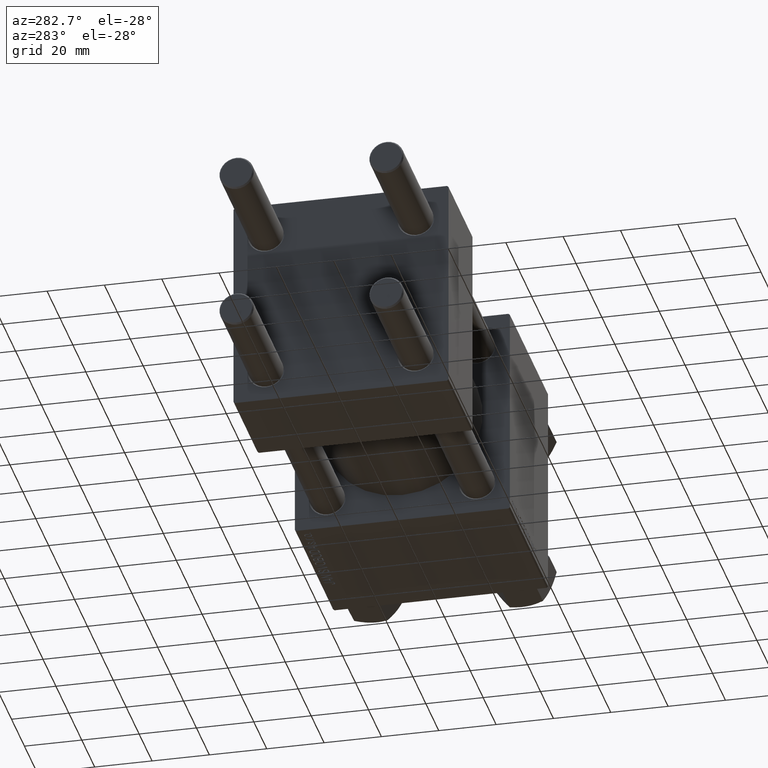
[diagram: clean part render]
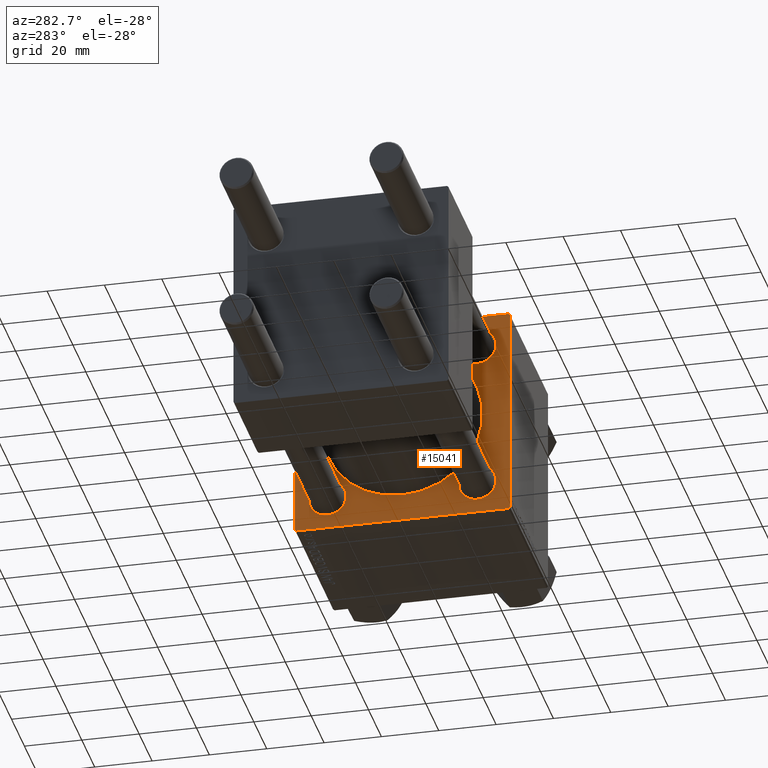
[diagram: same view with one face highlighted and labeled with its STEP entity id]
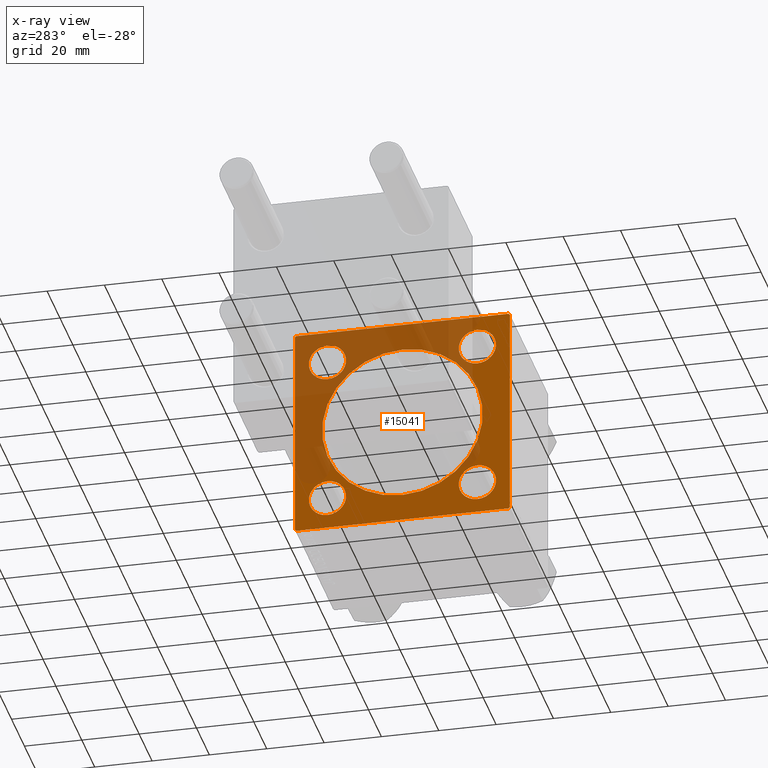
[diagram: x-ray of the same camera — body ghosted, the highlighted face saturated]
A machine part, auxiliary view. The second image highlights one B-rep face of the part: STEP entity #15041.
The next image is the same camera in x-ray: the body ghosted, the highlighted face saturated — about 45% of this face is hidden behind the body in this view.
In plain terms, the highlighted planar face has unit normal (-1, 0, 0).
Its self-contained STEP definition (entity closure, byte-faithful):
#127 = ORIENTED_EDGE ( 'NONE', *, *, #24100, .T. ) ;
#884 = DIRECTION ( 'NONE',  ( 1.000000000000000000, 0.000000000000000000, -0.000000000000000000 ) ) ;
#999 = EDGE_CURVE ( 'NONE', #46077, #20858, #17732, .T. ) ;
#1503 = DIRECTION ( 'NONE',  ( 1.000000000000000000, 0.000000000000000000, -0.000000000000000000 ) ) ;
#1712 = DIRECTION ( 'NONE',  ( 0.000000000000000000, 0.000000000000000000, -1.000000000000000000 ) ) ;
#1758 = EDGE_CURVE ( 'NONE', #12054, #46234, #8787, .T. ) ;
#2333 = DIRECTION ( 'NONE',  ( -0.000000000000000000, -0.7071067811865425767, -0.7071067811865525687 ) ) ;
#2478 = DIRECTION ( 'NONE',  ( 0.000000000000000000, -1.000000000000000000, 0.000000000000000000 ) ) ;
#2597 = DIRECTION ( 'NONE',  ( 1.000000000000000000, 0.000000000000000000, -0.000000000000000000 ) ) ;
#3166 = AXIS2_PLACEMENT_3D ( 'NONE', #14090, #41873, #49241 ) ;
#3227 = AXIS2_PLACEMENT_3D ( 'NONE', #33000, #28195, #5177 ) ;
#3328 = DIRECTION ( 'NONE',  ( 1.000000000000000000, 0.000000000000000000, -0.000000000000000000 ) ) ;
#3430 = EDGE_CURVE ( 'NONE', #46234, #12054, #42017, .T. ) ;
#3905 = CARTESIAN_POINT ( 'NONE',  ( 95.00000000000000000, 0.000000000000000000, 0.000000000000000000 ) ) ;
#4395 = FACE_BOUND ( 'NONE', #43471, .T. ) ;
#4897 = DIRECTION ( 'NONE',  ( -1.000000000000000000, -0.000000000000000000, 0.000000000000000000 ) ) ;
#5177 = DIRECTION ( 'NONE',  ( 0.000000000000000000, 0.000000000000000000, -1.000000000000000000 ) ) ;
#5272 = AXIS2_PLACEMENT_3D ( 'NONE', #35169, #3328, #14994 ) ;
#5409 = VERTEX_POINT ( 'NONE', #43233 ) ;
#5589 = CIRCLE ( 'NONE', #33890, 28.00000000000000000 ) ;
#6102 = CARTESIAN_POINT ( 'NONE',  ( 95.00000000000000000, -26.14999999999999147, 26.15000000000000924 ) ) ;
#6243 = VERTEX_POINT ( 'NONE', #35648 ) ;
#6424 = CARTESIAN_POINT ( 'NONE',  ( 95.00000000000000000, 0.000000000000000000, 0.000000000000000000 ) ) ;
#6753 = AXIS2_PLACEMENT_3D ( 'NONE', #20145, #884, #16350 ) ;
#6961 = VECTOR ( 'NONE', #17834, 1000.000000000000114 ) ;
#7735 = VERTEX_POINT ( 'NONE', #15684 ) ;
#7947 = FACE_BOUND ( 'NONE', #45858, .T. ) ;
#8255 = CARTESIAN_POINT ( 'NONE',  ( 95.00000000000000000, -37.50000000000000000, 36.99999999999995026 ) ) ;
#8311 = VECTOR ( 'NONE', #1712, 1000.000000000000000 ) ;
#8787 = CIRCLE ( 'NONE', #3166, 6.500000000000008882 ) ;
#8964 = CARTESIAN_POINT ( 'NONE',  ( 95.00000000000000000, 26.14999999999999858, -19.64999999999999503 ) ) ;
#9204 = LINE ( 'NONE', #40833, #6961 ) ;
#9330 = ORIENTED_EDGE ( 'NONE', *, *, #3430, .T. ) ;
#10308 = CARTESIAN_POINT ( 'NONE',  ( 95.00000000000000000, -37.50000000000000711, -37.00000000000000711 ) ) ;
#11385 = VERTEX_POINT ( 'NONE', #17514 ) ;
#11499 = ORIENTED_EDGE ( 'NONE', *, *, #20972, .T. ) ;
#11614 = VECTOR ( 'NONE', #12145, 1000.000000000000000 ) ;
#12054 = VERTEX_POINT ( 'NONE', #20097 ) ;
#12117 = ORIENTED_EDGE ( 'NONE', *, *, #35218, .T. ) ;
#12145 = DIRECTION ( 'NONE',  ( 0.000000000000000000, -9.251858538542972814E-17, -1.000000000000000000 ) ) ;
#12255 = DIRECTION ( 'NONE',  ( 0.000000000000000000, 0.000000000000000000, 1.000000000000000000 ) ) ;
#12812 = VERTEX_POINT ( 'NONE', #30492 ) ;
#13799 = DIRECTION ( 'NONE',  ( 0.000000000000000000, 0.7071067811865474617, -0.7071067811865474617 ) ) ;
#14020 = CIRCLE ( 'NONE', #6753, 6.500000000000008882 ) ;
#14090 = CARTESIAN_POINT ( 'NONE',  ( 95.00000000000000000, -26.14999999999999147, 26.15000000000000924 ) ) ;
#14556 = CARTESIAN_POINT ( 'NONE',  ( 95.00000000000000000, 37.50000000000000000, 37.49999999999999289 ) ) ;
#14660 = CARTESIAN_POINT ( 'NONE',  ( 95.00000000000000000, 37.50000000000000000, 36.99999999999999289 ) ) ;
#14957 = VECTOR ( 'NONE', #13799, 1000.000000000000114 ) ;
#14994 = DIRECTION ( 'NONE',  ( 0.000000000000000000, 0.000000000000000000, 1.000000000000000000 ) ) ;
#15041 = ADVANCED_FACE ( 'NONE', ( #4395, #7947, #39050, #20360, #23165, #42607 ), #23642, .T. ) ;
#15302 = VECTOR ( 'NONE', #34668, 1000.000000000000000 ) ;
#15684 = CARTESIAN_POINT ( 'NONE',  ( 95.00000000000000000, 37.00000000000000000, -37.50000000000000000 ) ) ;
#16350 = DIRECTION ( 'NONE',  ( 0.000000000000000000, 0.000000000000000000, 1.000000000000000000 ) ) ;
#16509 = EDGE_CURVE ( 'NONE', #35368, #46680, #24032, .T. ) ;
#16921 = CARTESIAN_POINT ( 'NONE',  ( 95.00000000000000000, 37.50000000000000000, 37.49999999999999289 ) ) ;
#16963 = CARTESIAN_POINT ( 'NONE',  ( 95.00000000000000000, 26.14999999999999858, -26.15000000000000213 ) ) ;
#17138 = ORIENTED_EDGE ( 'NONE', *, *, #43557, .T. ) ;
#17497 = EDGE_LOOP ( 'NONE', ( #127, #39280 ) ) ;
#17514 = CARTESIAN_POINT ( 'NONE',  ( 95.00000000000000000, -26.14999999999999147, -32.65000000000001990 ) ) ;
#17591 = CARTESIAN_POINT ( 'NONE',  ( 95.00000000000000000, 37.25000000000000000, 37.25000000000000000 ) ) ;
#17732 = CIRCLE ( 'NONE', #36265, 6.500000000000002665 ) ;
#17800 = DIRECTION ( 'NONE',  ( 0.000000000000000000, 0.000000000000000000, 1.000000000000000000 ) ) ;
#17834 = DIRECTION ( 'NONE',  ( -0.000000000000000000, 0.7071067811865474617, 0.7071067811865474617 ) ) ;
#18033 = EDGE_CURVE ( 'NONE', #7735, #5409, #41924, .T. ) ;
#19026 = LINE ( 'NONE', #22564, #15302 ) ;
#20097 = CARTESIAN_POINT ( 'NONE',  ( 95.00000000000000000, -26.14999999999999147, 19.65000000000000568 ) ) ;
#20145 = CARTESIAN_POINT ( 'NONE',  ( 95.00000000000000000, -26.14999999999999147, -26.15000000000000924 ) ) ;
#20291 = EDGE_CURVE ( 'NONE', #6243, #27256, #32752, .T. ) ;
#20360 = FACE_BOUND ( 'NONE', #17497, .T. ) ;
#20527 = VERTEX_POINT ( 'NONE', #8964 ) ;
#20823 = AXIS2_PLACEMENT_3D ( 'NONE', #38039, #42325, #34237 ) ;
#20858 = VERTEX_POINT ( 'NONE', #30888 ) ;
#20972 = EDGE_CURVE ( 'NONE', #20858, #46077, #31934, .T. ) ;
#21079 = CARTESIAN_POINT ( 'NONE',  ( 95.00000000000000000, 37.25000000000026290, -37.24999999999974420 ) ) ;
#21482 = ORIENTED_EDGE ( 'NONE', *, *, #22066, .T. ) ;
#21562 = DIRECTION ( 'NONE',  ( 1.000000000000000000, 0.000000000000000000, -0.000000000000000000 ) ) ;
#21764 = CARTESIAN_POINT ( 'NONE',  ( 95.00000000000000000, 37.50000000000000000, -36.99999999999999289 ) ) ;
#21982 = CARTESIAN_POINT ( 'NONE',  ( 95.00000000000000000, 37.50000000000000000, -37.50000000000000000 ) ) ;
#22036 = VERTEX_POINT ( 'NONE', #28784 ) ;
#22066 = EDGE_CURVE ( 'NONE', #27256, #43703, #40166, .T. ) ;
#22564 = CARTESIAN_POINT ( 'NONE',  ( 95.00000000000000000, -37.24999999999896261, -37.25000000000103029 ) ) ;
#23131 = DIRECTION ( 'NONE',  ( 0.000000000000000000, -1.000000000000000000, -1.850371707708594316E-16 ) ) ;
#23165 = FACE_BOUND ( 'NONE', #30147, .T. ) ;
#23642 = PLANE ( 'NONE',  #33387 ) ;
#24032 = LINE ( 'NONE', #46800, #11614 ) ;
#24100 = EDGE_CURVE ( 'NONE', #12812, #11385, #14020, .T. ) ;
#24955 = CARTESIAN_POINT ( 'NONE',  ( 95.00000000000000000, 0.000000000000000000, 28.00000000000000000 ) ) ;
#25065 = VECTOR ( 'NONE', #23131, 1000.000000000000000 ) ;
#26403 = DIRECTION ( 'NONE',  ( 1.000000000000000000, 0.000000000000000000, 0.000000000000000000 ) ) ;
#26905 = LINE ( 'NONE', #14556, #25065 ) ;
#27256 = VERTEX_POINT ( 'NONE', #14660 ) ;
#28142 = CARTESIAN_POINT ( 'NONE',  ( 95.00000000000000000, 3.429011037612588487E-15, -28.00000000000000000 ) ) ;
#28195 = DIRECTION ( 'NONE',  ( 1.000000000000000000, 0.000000000000000000, 0.000000000000000000 ) ) ;
#28266 = VERTEX_POINT ( 'NONE', #24955 ) ;
#28775 = ORIENTED_EDGE ( 'NONE', *, *, #999, .T. ) ;
#28784 = CARTESIAN_POINT ( 'NONE',  ( 95.00000000000000000, -36.99999999999997158, 37.49999999999997868 ) ) ;
#29474 = ORIENTED_EDGE ( 'NONE', *, *, #1758, .T. ) ;
#29878 = CIRCLE ( 'NONE', #3227, 28.00000000000000000 ) ;
#30107 = EDGE_CURVE ( 'NONE', #35368, #22036, #9204, .T. ) ;
#30147 = EDGE_LOOP ( 'NONE', ( #31384, #43787 ) ) ;
#30492 = CARTESIAN_POINT ( 'NONE',  ( 95.00000000000000000, -26.14999999999999147, -19.65000000000000213 ) ) ;
#30578 = CARTESIAN_POINT ( 'NONE',  ( 95.00000000000000000, -26.14999999999999147, 32.65000000000001279 ) ) ;
#30888 = CARTESIAN_POINT ( 'NONE',  ( 95.00000000000000000, 26.14999999999999858, 32.65000000000001279 ) ) ;
#31317 = CIRCLE ( 'NONE', #20823, 6.500000000000008882 ) ;
#31384 = ORIENTED_EDGE ( 'NONE', *, *, #46826, .T. ) ;
#31934 = CIRCLE ( 'NONE', #5272, 6.500000000000002665 ) ;
#32069 = ORIENTED_EDGE ( 'NONE', *, *, #16509, .F. ) ;
#32125 = CARTESIAN_POINT ( 'NONE',  ( 95.00000000000000000, 26.14999999999999858, 19.64999999999999858 ) ) ;
#32596 = DIRECTION ( 'NONE',  ( 1.000000000000000000, 0.000000000000000000, -0.000000000000000000 ) ) ;
#32752 = LINE ( 'NONE', #17591, #14957 ) ;
#33000 = CARTESIAN_POINT ( 'NONE',  ( 95.00000000000000000, 0.000000000000000000, 0.000000000000000000 ) ) ;
#33387 = AXIS2_PLACEMENT_3D ( 'NONE', #3905, #4897, #12255 ) ;
#33389 = VERTEX_POINT ( 'NONE', #38675 ) ;
#33681 = DIRECTION ( 'NONE',  ( 0.000000000000000000, 0.000000000000000000, 1.000000000000000000 ) ) ;
#33890 = AXIS2_PLACEMENT_3D ( 'NONE', #6424, #26403, #48691 ) ;
#34237 = DIRECTION ( 'NONE',  ( 0.000000000000000000, 0.000000000000000000, 1.000000000000000000 ) ) ;
#34668 = DIRECTION ( 'NONE',  ( 0.000000000000000000, -0.7071067811865671127, 0.7071067811865279218 ) ) ;
#35169 = CARTESIAN_POINT ( 'NONE',  ( 95.00000000000000000, 26.14999999999999858, 26.15000000000000213 ) ) ;
#35218 = EDGE_CURVE ( 'NONE', #20527, #33389, #38470, .T. ) ;
#35229 = ORIENTED_EDGE ( 'NONE', *, *, #18033, .T. ) ;
#35368 = VERTEX_POINT ( 'NONE', #8255 ) ;
#35648 = CARTESIAN_POINT ( 'NONE',  ( 95.00000000000000000, 37.00000000000000000, 37.49999999999999289 ) ) ;
#36265 = AXIS2_PLACEMENT_3D ( 'NONE', #37262, #2597, #17800 ) ;
#36638 = CARTESIAN_POINT ( 'NONE',  ( 95.00000000000000000, 26.14999999999999858, -26.15000000000000213 ) ) ;
#37262 = CARTESIAN_POINT ( 'NONE',  ( 95.00000000000000000, 26.14999999999999858, 26.15000000000000213 ) ) ;
#37519 = EDGE_CURVE ( 'NONE', #11385, #12812, #31317, .T. ) ;
#38039 = CARTESIAN_POINT ( 'NONE',  ( 95.00000000000000000, -26.14999999999999147, -26.15000000000000924 ) ) ;
#38470 = CIRCLE ( 'NONE', #48202, 6.500000000000008882 ) ;
#38675 = CARTESIAN_POINT ( 'NONE',  ( 95.00000000000000000, 26.14999999999999858, -32.65000000000001279 ) ) ;
#39050 = FACE_BOUND ( 'NONE', #45388, .T. ) ;
#39280 = ORIENTED_EDGE ( 'NONE', *, *, #37519, .T. ) ;
#39499 = ORIENTED_EDGE ( 'NONE', *, *, #30107, .T. ) ;
#40166 = LINE ( 'NONE', #16921, #8311 ) ;
#40378 = CIRCLE ( 'NONE', #42008, 6.500000000000008882 ) ;
#40410 = VECTOR ( 'NONE', #2333, 999.9999999999998863 ) ;
#40740 = VECTOR ( 'NONE', #2478, 1000.000000000000000 ) ;
#40833 = CARTESIAN_POINT ( 'NONE',  ( 95.00000000000000000, -37.24999999999997158, 37.24999999999997158 ) ) ;
#41301 = LINE ( 'NONE', #21079, #40410 ) ;
#41445 = DIRECTION ( 'NONE',  ( 0.000000000000000000, 0.000000000000000000, 1.000000000000000000 ) ) ;
#41497 = EDGE_LOOP ( 'NONE', ( #35229, #45356, #32069, #39499, #49265, #42801, #21482, #43624 ) ) ;
#41873 = DIRECTION ( 'NONE',  ( 1.000000000000000000, 0.000000000000000000, -0.000000000000000000 ) ) ;
#41924 = LINE ( 'NONE', #21982, #40740 ) ;
#42008 = AXIS2_PLACEMENT_3D ( 'NONE', #16963, #1503, #48073 ) ;
#42017 = CIRCLE ( 'NONE', #49308, 6.500000000000008882 ) ;
#42027 = EDGE_CURVE ( 'NONE', #48074, #28266, #5589, .T. ) ;
#42325 = DIRECTION ( 'NONE',  ( 1.000000000000000000, 0.000000000000000000, -0.000000000000000000 ) ) ;
#42607 = FACE_OUTER_BOUND ( 'NONE', #41497, .T. ) ;
#42801 = ORIENTED_EDGE ( 'NONE', *, *, #20291, .T. ) ;
#43233 = CARTESIAN_POINT ( 'NONE',  ( 95.00000000000000000, -36.99999999999998579, -37.50000000000000000 ) ) ;
#43471 = EDGE_LOOP ( 'NONE', ( #9330, #29474 ) ) ;
#43557 = EDGE_CURVE ( 'NONE', #33389, #20527, #40378, .T. ) ;
#43624 = ORIENTED_EDGE ( 'NONE', *, *, #45420, .T. ) ;
#43703 = VERTEX_POINT ( 'NONE', #21764 ) ;
#43787 = ORIENTED_EDGE ( 'NONE', *, *, #42027, .T. ) ;
#44432 = EDGE_CURVE ( 'NONE', #6243, #22036, #26905, .T. ) ;
#45356 = ORIENTED_EDGE ( 'NONE', *, *, #45980, .T. ) ;
#45388 = EDGE_LOOP ( 'NONE', ( #12117, #17138 ) ) ;
#45420 = EDGE_CURVE ( 'NONE', #43703, #7735, #41301, .T. ) ;
#45858 = EDGE_LOOP ( 'NONE', ( #11499, #28775 ) ) ;
#45980 = EDGE_CURVE ( 'NONE', #5409, #46680, #19026, .T. ) ;
#46077 = VERTEX_POINT ( 'NONE', #32125 ) ;
#46234 = VERTEX_POINT ( 'NONE', #30578 ) ;
#46680 = VERTEX_POINT ( 'NONE', #10308 ) ;
#46800 = CARTESIAN_POINT ( 'NONE',  ( 95.00000000000000000, -37.50000000000000000, 37.49999999999997868 ) ) ;
#46826 = EDGE_CURVE ( 'NONE', #28266, #48074, #29878, .T. ) ;
#48073 = DIRECTION ( 'NONE',  ( 0.000000000000000000, 0.000000000000000000, 1.000000000000000000 ) ) ;
#48074 = VERTEX_POINT ( 'NONE', #28142 ) ;
#48202 = AXIS2_PLACEMENT_3D ( 'NONE', #36638, #32596, #41445 ) ;
#48691 = DIRECTION ( 'NONE',  ( 0.000000000000000000, 0.000000000000000000, -1.000000000000000000 ) ) ;
#49241 = DIRECTION ( 'NONE',  ( 0.000000000000000000, 0.000000000000000000, 1.000000000000000000 ) ) ;
#49265 = ORIENTED_EDGE ( 'NONE', *, *, #44432, .F. ) ;
#49308 = AXIS2_PLACEMENT_3D ( 'NONE', #6102, #21562, #33681 ) ;